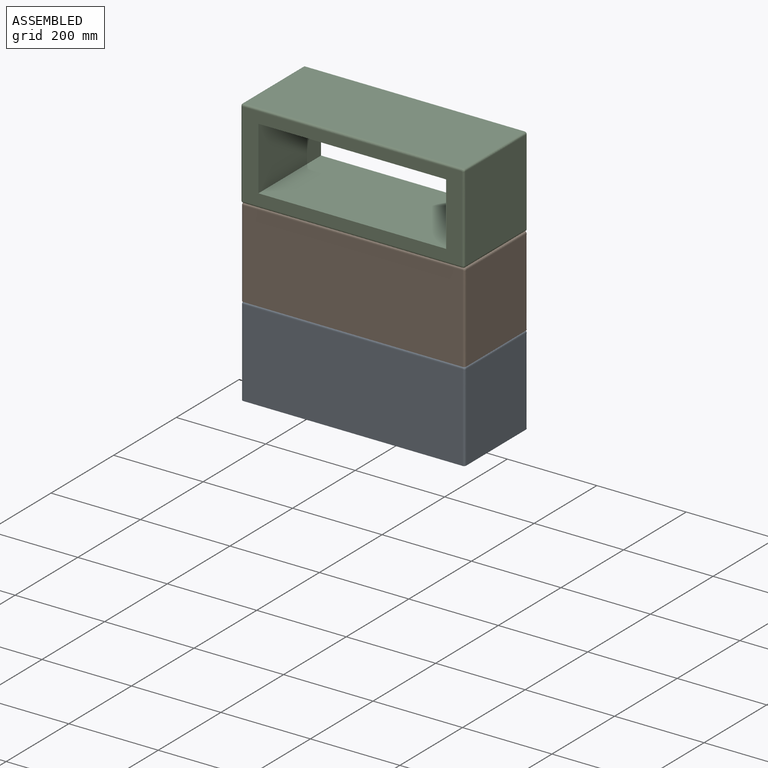
[diagram: assembled view]
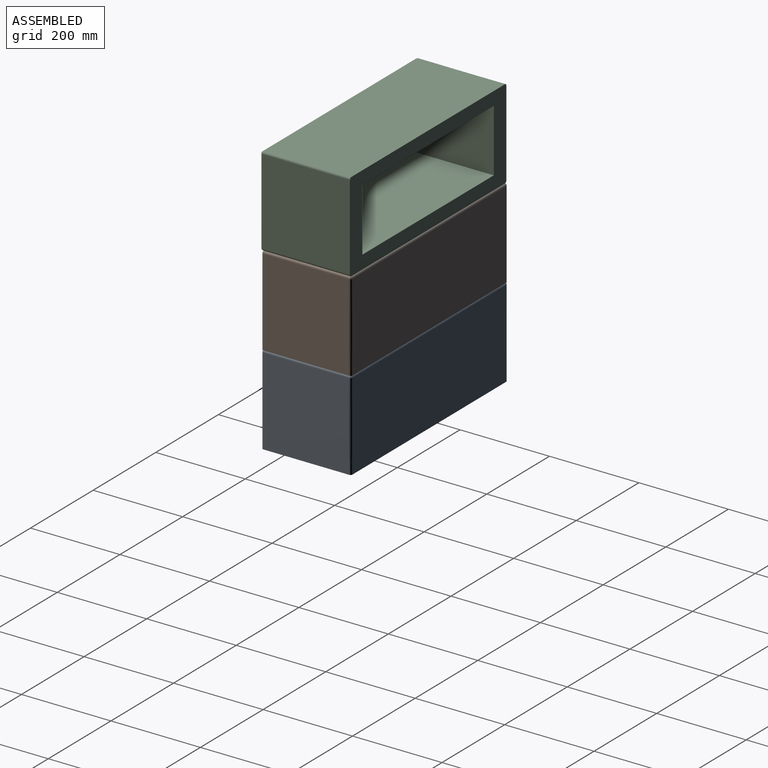
[diagram: assembled view, second angle]
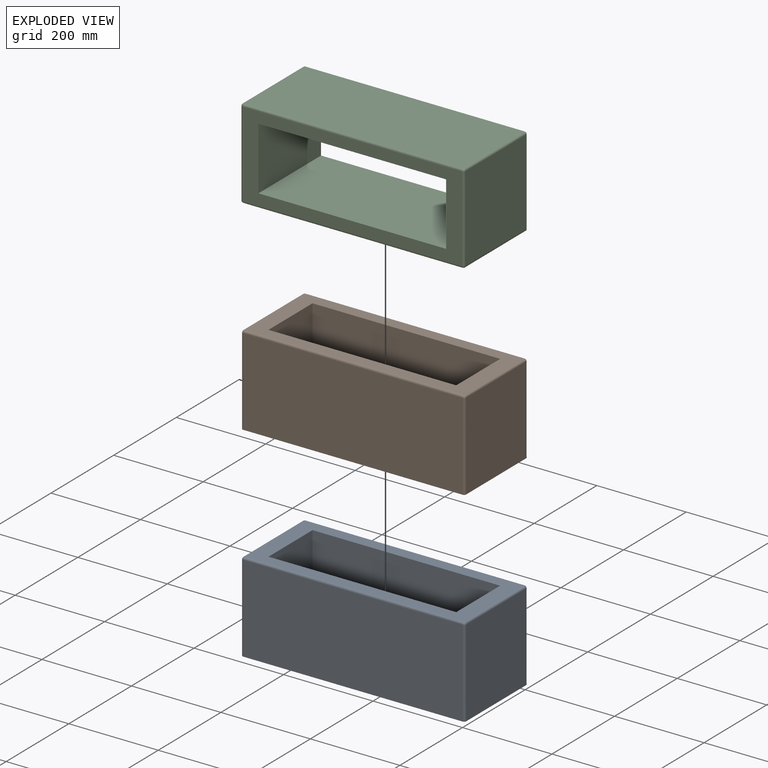
[diagram: exploded view]
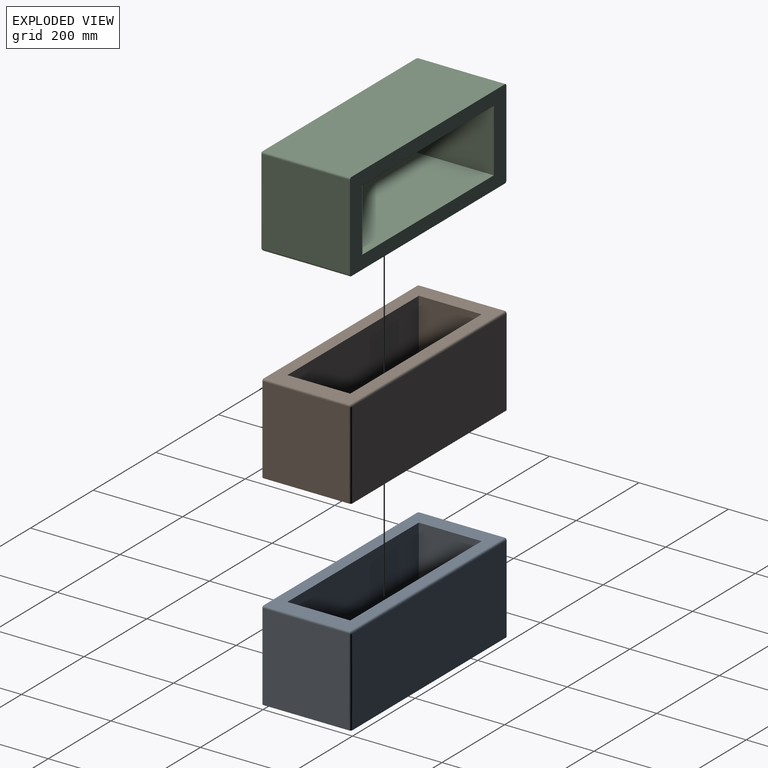
[diagram: exploded view, second angle]
ASSEMBLY  parts=3 mates=2
PART A: 22 faces, bbox 499.8x200.7x220.2 mm
  f0: plane 200x140.44mm, normal (1,0,0), area 28088.6mm2, adj f2,f7,f20,f21
  f1: plane 200x140.44mm, normal (-1,0,0), area 28088.6mm2, adj f2,f7,f20,f21
  f2: plane 489.57x190.44mm, normal (0,0,1), area 34309.4mm2, adj f0,f1,f12,f13,f14,f15,f20,f21
  f3: plane 489.57x195mm, normal (0,1,0), area 95465.5mm2, adj f7,f9,f11,f12
  f4: plane 195x190.44mm, normal (-1,0,0), area 37136.4mm2, adj f7,f8,f11,f14
  f5: plane 489.57x195mm, normal (0,-1,0), area 95465.5mm2, adj f7,f8,f10,f15
  f6: plane 195x190.44mm, normal (1,0,0), area 37136.4mm2, adj f7,f9,f10,f13
  f7: plane 499.8x200.68mm, normal (0,0,-1), area 41197.3mm2, adj f0,f1,f3,f4,f5,f6,f8,f9
  f8: bspline ~220x5mm, area 1585.6mm2, adj f4,f5,f7,f19
  f9: bspline ~220x5mm, area 1585.6mm2, adj f3,f6,f7,f16
  f10: bspline ~220x5mm, area 1585.6mm2, adj f5,f6,f7,f18
  f11: bspline ~220x5mm, area 1585.6mm2, adj f3,f4,f7,f17
  f12: bspline ~489.57x5mm, area 3980.7mm2, adj f2,f3,f16,f17
  f13: bspline ~190.44x5mm, area 1548.5mm2, adj f2,f6,f16,f18
  f14: bspline ~190.44x5mm, area 1548.5mm2, adj f2,f4,f17,f19
  f15: bspline ~489.57x5mm, area 3980.7mm2, adj f2,f5,f18,f19
  f16: bspline ~7.81x7.78mm, area 29.2mm2, adj f9,f12,f13
  f17: bspline ~7.81x7.78mm, area 29.2mm2, adj f11,f12,f14
  f18: bspline ~7.81x7.78mm, area 29.2mm2, adj f10,f13,f15
  f19: bspline ~7.81x7.78mm, area 29.2mm2, adj f8,f14,f15
  f20: plane 419.57x200mm, normal (0,-1,0), area 83913.4mm2, adj f0,f1,f2,f7
  f21: plane 419.57x200mm, normal (0,1,0), area 83913.4mm2, adj f0,f1,f2,f7
PART B: same geometry as A
PART C: same geometry as A
PLACE A t=(-105.37,200.44,0)mm
PLACE B t=(-105.37,200.44,200)mm
PLACE C rot(axis=(0,0.71,-0.71),180deg) t=(-384.19,197.72,400)mm
MATE fastened A.f2 <-> B.f7  axis (0,0,1) through (-244.78,100.22,200)mm
MATE fastened B.f2 <-> C.f3  axis (0,0,1) through (-244.78,100.22,400)mm
